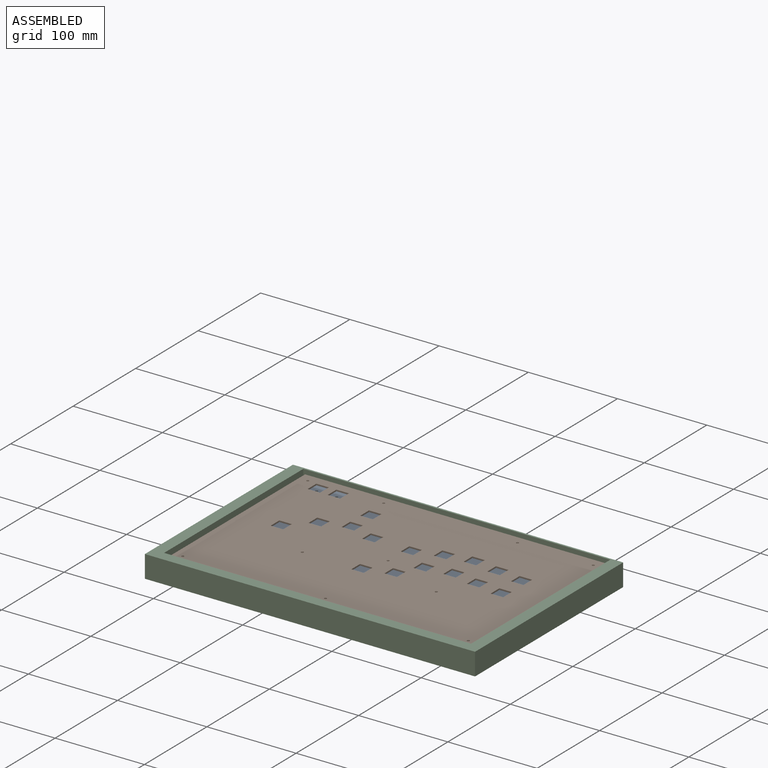
[diagram: assembled view]
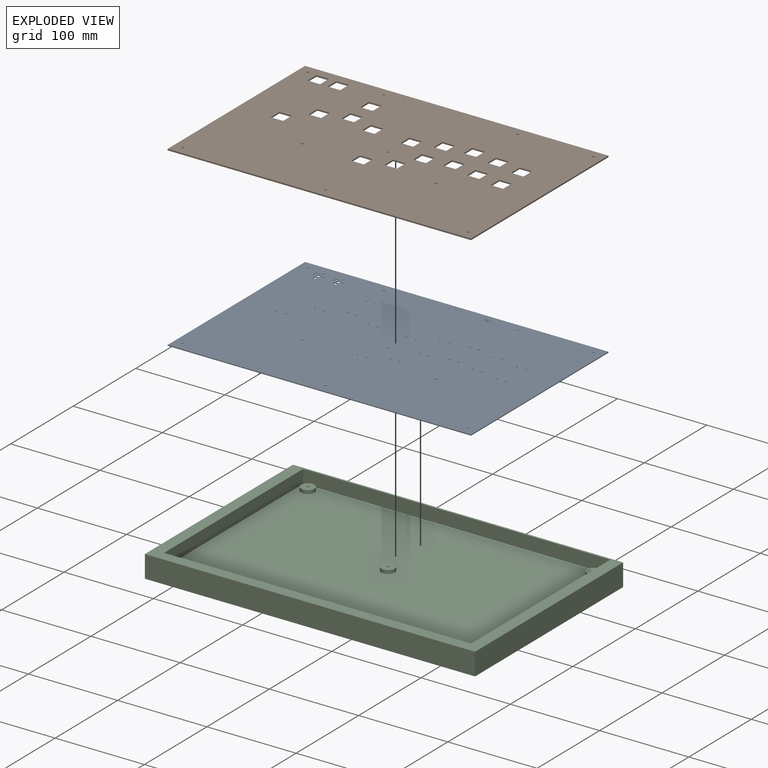
[diagram: exploded view]
GUIDED TOUR — FREECAD ASSEMBLY "Udong"

This assembly has 3 components, labeled P0..P2 below (a component is one placed body or linked part; the same part can appear more than once), held together by 0 modeled joints plus 3 derived contact edges. A joint is a constraint between two components; its type names the relative motion it leaves free:
  CONTACT — a derived adjacency edge — the two components touch in the source model (clearance under 2% of the assembly's diagonal); it is measured from the geometry, not a modeled constraint.
Axis/direction vectors are unit vectors and 'through' points are millimeter coordinates, both in the assembly's world frame.

MATES
  1. CONTACT "contact_0_1": P0 <-> P1, contact direction (0.000, 0.000, 1.000) through (-161.23, -209.43, 16.70) mm (derived from contact, not a modeled constraint)
  2. CONTACT "contact_0_2": P0 <-> P2, contact direction (0.000, 0.000, -1.000) through (-161.12, -210.85, 14.00) mm (derived from contact, not a modeled constraint)
  3. CONTACT "contact_1_2": P1 <-> P2, contact direction (0.000, 0.000, -1.000) through (-158.60, -210.00, 16.20) mm (derived from contact, not a modeled constraint)

ASSEMBLY ORDER
  1. P2 — the base component [order verified]
  2. P0 [order verified]
  3. P1 [order verified]
Order-tag legend:
  [order verified] — this step's position reverses a verified removal order: the component was checked to insert without passing through the ones already placed.

Of the 3 components, 1 carries a construction recipe — the FreeCAD feature program (sketches with constraints, then the solid features that consume them) that regenerates the part from scratch, quoted from this document or from the linked companion document it references; the rest are supplied as boundary geometry only. The tour below walks the components in assembly order: each is shown spotlighted twice — in the assembled view, then in the exploded view, where a leader line traces a displaced component back to its assembled socket (components that stay in place when exploded have no leader line; saturated green if recipe-attached, orange if geometry-only; every other component desaturated gray) — followed by its recipe or geometry summary and the mates that hold it.
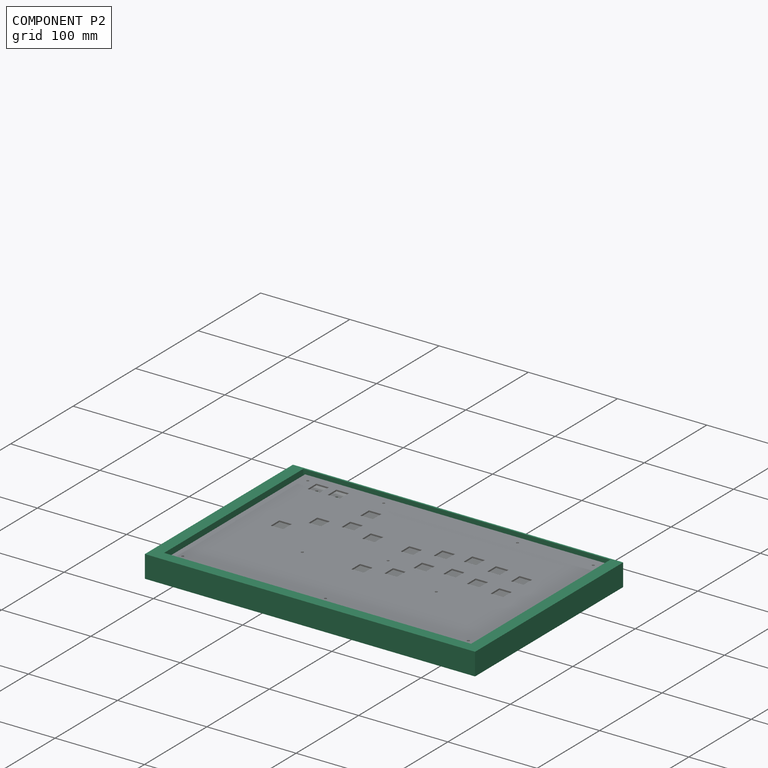
[diagram: component P2 — assembled]
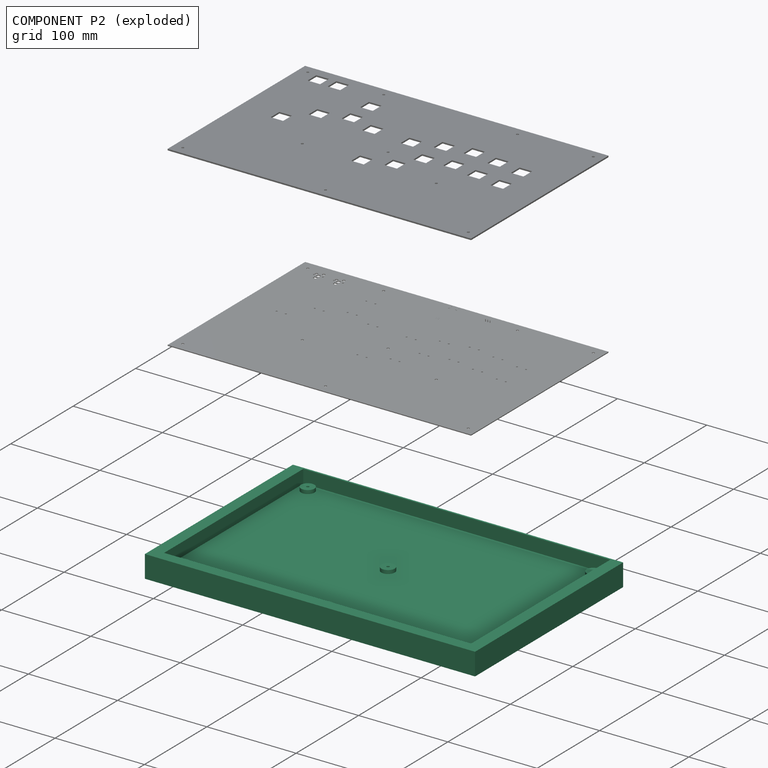
[diagram: component P2 — exploded]
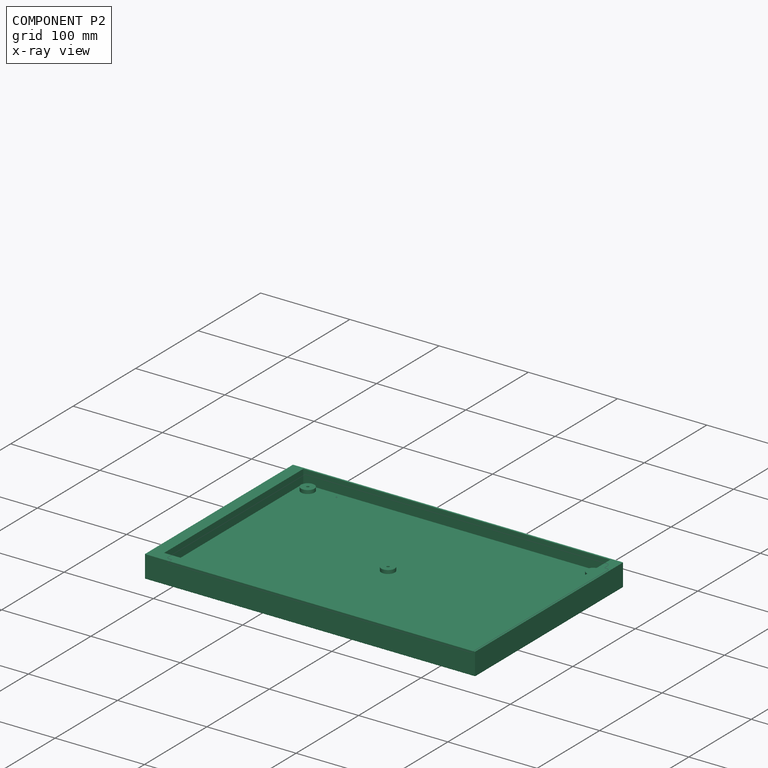
[diagram: component P2 — x-ray view]
COMPONENT P2 — recipe-attached ("Body", modeled in this document).
Held by: resting contact with P0 (derived edge); resting contact with P1 (derived edge).
Construction recipe (the document's own serialized feature program — sketch geometry with constraints, then the solid features built on it; lengths are millimeters unless a unit is written):

FEATURE [Sketcher::SketchObject] Sketch
  FullyConstrained = true
  MapMode = 5
  expr: Constraints[3] = Spreadsheet.box_height
  expr: Constraints[4] = Spreadsheet.box_width
  expr: Constraints[9] = Spreadsheet.usb_wall_thickness
  sketch-geometry (4):
    g0: LineSegment StartX=-185 StartY=2 StartZ=0 EndX=185 EndY=2 EndZ=0
    g1: LineSegment StartX=185 StartY=2 StartZ=0 EndX=185 EndY=-235 EndZ=0
    g2: LineSegment StartX=185 StartY=-235 StartZ=0 EndX=-185 EndY=-235 EndZ=0
    g3: LineSegment StartX=-185 StartY=-235 StartZ=0 EndX=-185 EndY=2 EndZ=0
  constraints (11):
    c: Horizontal(g2)
    c: Vertical(g1)
    c: Vertical(g3)
    c: DistanceY(g1,g1) = 237
    c: DistanceX(g0,g0) = 370
    c: Coincident(g2,g1)
    c: Coincident(g3,g2)
    c: Coincident(g0,g1)
    c: Coincident(g0,g3)
    c: DistanceY(g-1,g0) = 2
    c: Symmetric(g0,g0,g-2)
FEATURE [Sketcher::SketchObject] Sketch001  label="Sketch_MainPocket"
  FullyConstrained = true
  MapMode = 5
  Placement = pos=(0,0,25) rot=(0,0,1;0rad)
  expr: .Placement.Base.z = Spreadsheet.box_thickness
  expr: Constraints[8] = Spreadsheet.pcb_height + 1 mm + 2 * Spreadsheet.fillet_addition
  expr: Constraints[9] = Spreadsheet.pcb_width + 1 mm + Spreadsheet.fillet_phi
  sketch-geometry (4):
    g0: LineSegment StartX=-172 StartY=0 StartZ=0 EndX=172 EndY=0 EndZ=0
    g1: LineSegment StartX=172 StartY=0 StartZ=0 EndX=172 EndY=-222.757 EndZ=0
    g2: LineSegment StartX=172 StartY=-222.757 StartZ=0 EndX=-172 EndY=-222.757 EndZ=0
    g3: LineSegment StartX=-172 StartY=-222.757 StartZ=0 EndX=-172 EndY=0 EndZ=0
  constraints (11):
    c: Coincident(g0,g1)
    c: Coincident(g1,g2)
    c: Coincident(g2,g3)
    c: Coincident(g3,g0)
    c: Horizontal(g0)
    c: Horizontal(g2)
    c: Vertical(g1)
    c: Vertical(g3)
    c: DistanceY(g3,g3) = 222.757
    c: DistanceX(g2,g2) = 344
    c: Symmetric(g0,g0,g-1)
FEATURE [PartDesign::Pad] Pad
  Direction = (0,0,1)
  Length = 25
  Length2 = 10
  Profile = -> Sketch
  ReferenceAxis = -> Sketch [N_Axis]
  Type = 0
  expr: Length = Spreadsheet.box_thickness
FEATURE [PartDesign::Pocket] Pocket
  BaseFeature = -> Pad
  Direction = (0,0,-1)
  Length = 15
  Length2 = 5
  Profile = -> Sketch001
  ReferenceAxis = -> Sketch001 [N_Axis]
  Type = 0
  expr: Length = Spreadsheet.box_thickness - Spreadsheet.box_bottom_thickness
FEATURE [Sketcher::SketchObject] Sketch002  label="Sketch_Mounting"
  FullyConstrained = true
  MapMode = 5
  Placement = pos=(0,0,10) rot=(0,0,1;0rad)
  expr: Constraints[2] = Spreadsheet.mounting_phi
  sketch-geometry (6):
    g0: Circle CenterX=160 CenterY=-10 CenterZ=0 NormalX=0 NormalY=0 NormalZ=1 AngleXU=0 Radius=7.5
    g1: Circle CenterX=160 CenterY=-210 CenterZ=0 NormalX=0 NormalY=0 NormalZ=1 AngleXU=0 Radius=7.5
    g2: Circle CenterX=-160 CenterY=-10 CenterZ=0 NormalX=0 NormalY=0 NormalZ=1 AngleXU=0 Radius=7.5
    g3: Circle CenterX=-160 CenterY=-210 CenterZ=0 NormalX=0 NormalY=0 NormalZ=1 AngleXU=0 Radius=7.5
    g4: Circle CenterX=0 CenterY=-110 CenterZ=0 NormalX=0 NormalY=0 NormalZ=1 AngleXU=0 Radius=7.5
    g5: Circle CenterX=0 CenterY=-210 CenterZ=0 NormalX=0 NormalY=0 NormalZ=1 AngleXU=0 Radius=7.5
  constraints (16):
    c: DistanceX(g-2,g0) = 160
    c: DistanceY(g0,g-1) = 10
    c: Diameter(g0) = 15
    c: Vertical(g1,g0)
    c: DistanceY(g1) = -210
    c: Symmetric(g3,g1,g-2)
    c: Symmetric(g2,g0,g-2)
    c: Equal(g2,g0)
    c: Equal(g0,g3)
    c: Equal(g0,g1)
    c: PointOnObject(g4,g-2)
    c: DistanceY(g4) = -110
    c: Equal(g0,g4)
    c: PointOnObject(g5,g-2)
    c: Horizontal(g1,g5)
    c: Equal(g0,g5)
FEATURE [PartDesign::Pad] Pad001
  BaseFeature = -> Pocket
  Direction = (0,0,1)
  Length = 4
  Length2 = 10
  Profile = -> Sketch002
  ReferenceAxis = -> Sketch002 [N_Axis]
  Type = 0
  expr: Length = Spreadsheet.bottom_space
FEATURE [Sketcher::SketchObject] Sketch003  label="Ceil_holder_Sketch"
  FullyConstrained = true
  MapMode = 5
  Placement = pos=(0,0,25) rot=(0,0,1;0rad)
  Support = -> [Pad001]
  expr: Constraints[10] = Spreadsheet.ceil_width
  expr: Constraints[8] = Spreadsheet.ceil_holder_thickness
  expr: Constraints[9] = Spreadsheet.ceil_height
  sketch-geometry (4):
    g0: LineSegment StartX=-178 StartY=8 StartZ=0 EndX=178 EndY=8 EndZ=0
    g1: LineSegment StartX=178 StartY=8 StartZ=0 EndX=178 EndY=-215 EndZ=0
    g2: LineSegment StartX=178 StartY=-215 StartZ=0 EndX=-178 EndY=-215 EndZ=0
    g3: LineSegment StartX=-178 StartY=-215 StartZ=0 EndX=-178 EndY=8 EndZ=0
  constraints (11):
    c: Coincident(g0,g1)
    c: Coincident(g1,g2)
    c: Coincident(g2,g3)
    c: Coincident(g3,g0)
    c: Horizontal(g2)
    c: Vertical(g1)
    c: Vertical(g3)
    c: Symmetric(g0,g0,g-2)
    c: DistanceY(g-1,g0) = 8
    c: DistanceY(g1,g1) = 223
    c: DistanceX(g2,g2) = 356
FEATURE [Sketcher::SketchObject] Sketch004  label="Screw_holes_Sketch"
  FullyConstrained = true
  MapMode = 5
  Placement = pos=(0,0,14) rot=(0,0,1;0rad)
  expr: Constraints[0] = Spreadsheet.M2_5_hole_phi
  sketch-geometry (6):
    g0: Circle CenterX=160 CenterY=-10 CenterZ=0 NormalX=0 NormalY=0 NormalZ=1 AngleXU=0 Radius=1.4
    g1: Circle CenterX=160 CenterY=-210 CenterZ=0 NormalX=0 NormalY=0 NormalZ=1 AngleXU=0 Radius=1.4
    g2: Circle CenterX=-160 CenterY=-10 CenterZ=0 NormalX=0 NormalY=0 NormalZ=1 AngleXU=0 Radius=1.4
    g3: Circle CenterX=-160 CenterY=-210 CenterZ=0 NormalX=0 NormalY=0 NormalZ=1 AngleXU=0 Radius=1.4
    g4: Circle CenterX=0 CenterY=-210 CenterZ=0 NormalX=0 NormalY=0 NormalZ=1 AngleXU=0 Radius=1.4
    g5: Circle CenterX=0 CenterY=-110 CenterZ=0 NormalX=0 NormalY=0 NormalZ=1 AngleXU=0 Radius=1.4
  constraints (16):
    c: Diameter(g0) = 2.8
    c: DistanceX(g0) = 160
    c: DistanceY(g0) = -10
    c: Equal(g0,g1)
    c: DistanceY(g1) = -210
    c: Vertical(g0,g1)
    c: Diameter(g2) = 2.8
    c: Equal(g2,g3)
    c: PointOnObject(g4,g-2)
    c: Equal(g0,g4)
    c: Horizontal(g4,g1)
    c: PointOnObject(g5,g-2)
    c: DistanceY(g5) = -110
    c: Equal(g0,g5)
    c: Symmetric(g0,g2,g-2)
    c: Symmetric(g1,g3,g-2)
FEATURE [Sketcher::SketchObject] Sketch005  label="Nut_holds_Sketch"
  FullyConstrained = true
  MapMode = 5
  Placement = pos=(0,0,0) rot=(1,0,0;3.14159rad)
  expr: Constraints[122] = Spreadsheet.M2_5_nut_width / 2
  expr: Constraints[20] = Spreadsheet.M2_5_nut_width / 2
  expr: Constraints[38] = Spreadsheet.M2_5_nut_width / 2
  expr: Constraints[59] = Spreadsheet.M2_5_nut_width / 2
  expr: Constraints[80] = Spreadsheet.M2_5_nut_width / 2
  expr: Constraints[98] = Spreadsheet.M2_5_nut_width / 2
  sketch-geometry (42):
    g0: LineSegment StartX=2.6 StartY=108.499 StartZ=0 EndX=2.6 EndY=111.501 EndZ=0
    g1: LineSegment StartX=2.6 StartY=111.501 StartZ=0 EndX=0 EndY=113.002 EndZ=0
    g2: LineSegment StartX=0 StartY=113.002 StartZ=0 EndX=-2.6 EndY=111.501 EndZ=0
    g3: LineSegment StartX=-2.6 StartY=111.501 StartZ=0 EndX=-2.6 EndY=108.499 EndZ=0
    g4: LineSegment StartX=-2.6 StartY=108.499 StartZ=0 EndX=0 EndY=106.998 EndZ=0
    g5: LineSegment StartX=0 StartY=106.998 StartZ=0 EndX=2.6 EndY=108.499 EndZ=0
    g6: Circle CenterX=-2.543e-13 CenterY=110 CenterZ=0 NormalX=0 NormalY=0 NormalZ=1 AngleXU=0 Radius=3.00222
    g7: LineSegment StartX=-157.4 StartY=8.49889 StartZ=0 EndX=-157.4 EndY=11.5011 EndZ=0
    g8: LineSegment StartX=-157.4 StartY=11.5011 StartZ=0 EndX=-160 EndY=13.0022 EndZ=0
    g9: LineSegment StartX=-160 StartY=13.0022 StartZ=0 EndX=-162.6 EndY=11.5011 EndZ=0
    g10: LineSegment StartX=-162.6 StartY=11.5011 StartZ=0 EndX=-162.6 EndY=8.49889 EndZ=0
    g11: LineSegment StartX=-162.6 StartY=8.49889 StartZ=0 EndX=-160 EndY=6.99778 EndZ=0
    g12: LineSegment StartX=-160 StartY=6.99778 StartZ=0 EndX=-157.4 EndY=8.49889 EndZ=0
    g13: Circle CenterX=-160 CenterY=10 CenterZ=0 NormalX=0 NormalY=0 NormalZ=1 AngleXU=0 Radius=3.00222
    g14: LineSegment StartX=-157.4 StartY=208.499 StartZ=0 EndX=-157.4 EndY=211.501 EndZ=0
    g15: LineSegment StartX=-157.4 StartY=211.501 StartZ=0 EndX=-160 EndY=213.002 EndZ=0
    g16: LineSegment StartX=-160 StartY=213.002 StartZ=0 EndX=-162.6 EndY=211.501 EndZ=0
    g17: LineSegment StartX=-162.6 StartY=211.501 StartZ=0 EndX=-162.6 EndY=208.499 EndZ=0
    g18: LineSegment StartX=-162.6 StartY=208.499 StartZ=0 EndX=-160 EndY=206.998 EndZ=0
    g19: LineSegment StartX=-160 StartY=206.998 StartZ=0 EndX=-157.4 EndY=208.499 EndZ=0
    g20: Circle CenterX=-160 CenterY=210 CenterZ=0 NormalX=0 NormalY=0 NormalZ=1 AngleXU=0 Radius=3.00222
    g21: LineSegment StartX=157.4 StartY=8.49889 StartZ=0 EndX=157.4 EndY=11.5011 EndZ=0
    g22: LineSegment StartX=157.4 StartY=11.5011 StartZ=0 EndX=160 EndY=13.0022 EndZ=0
    g23: LineSegment StartX=160 StartY=13.0022 StartZ=0 EndX=162.6 EndY=11.5011 EndZ=0
    g24: LineSegment StartX=162.6 StartY=11.5011 StartZ=0 EndX=162.6 EndY=8.49889 EndZ=0
    g25: LineSegment StartX=162.6 StartY=8.49889 StartZ=0 EndX=160 EndY=6.99778 EndZ=0
    g26: LineSegment StartX=160 StartY=6.99778 StartZ=0 EndX=157.4 EndY=8.49889 EndZ=0
    g27: Circle CenterX=160 CenterY=10 CenterZ=0 NormalX=0 NormalY=0 NormalZ=1 AngleXU=0 Radius=3.00222
    g28: LineSegment StartX=157.4 StartY=208.499 StartZ=0 EndX=157.4 EndY=211.501 EndZ=0
    g29: LineSegment StartX=157.4 StartY=211.501 StartZ=0 EndX=160 EndY=213.002 EndZ=0
    g30: LineSegment StartX=160 StartY=213.002 StartZ=0 EndX=162.6 EndY=211.501 EndZ=0
    g31: LineSegment StartX=162.6 StartY=211.501 StartZ=0 EndX=162.6 EndY=208.499 EndZ=0
    g32: LineSegment StartX=162.6 StartY=208.499 StartZ=0 EndX=160 EndY=206.998 EndZ=0
    g33: LineSegment StartX=160 StartY=206.998 StartZ=0 EndX=157.4 EndY=208.499 EndZ=0
    g34: Circle CenterX=160 CenterY=210 CenterZ=0 NormalX=0 NormalY=0 NormalZ=1 AngleXU=0 Radius=3.00222
    g35: LineSegment StartX=2.6 StartY=208.499 StartZ=0 EndX=2.6 EndY=211.501 EndZ=0
    g36: LineSegment StartX=2.6 StartY=211.501 StartZ=0 EndX=1.608e-13 EndY=213.002 EndZ=0
    g37: LineSegment StartX=1.608e-13 StartY=213.002 StartZ=0 EndX=-2.6 EndY=211.501 EndZ=0
    g38: LineSegment StartX=-2.6 StartY=211.501 StartZ=0 EndX=-2.6 EndY=208.499 EndZ=0
    g39: LineSegment StartX=-2.6 StartY=208.499 StartZ=0 EndX=1.608e-13 EndY=206.998 EndZ=0
    g40: LineSegment StartX=1.608e-13 StartY=206.998 StartZ=0 EndX=2.6 EndY=208.499 EndZ=0
    g41: Circle CenterX=0 CenterY=210 CenterZ=0 NormalX=0 NormalY=0 NormalZ=1 AngleXU=0 Radius=3.00222
  constraints (102):
    c: Coincident(g0,g1)
    c: Coincident(g1,g2)
    c: Coincident(g2,g3)
    c: Coincident(g3,g4)
    c: Coincident(g4,g5)
    c: Coincident(g5,g0)
    c: Equal(g0, g1-g5) x5
    c: PointOnObject(g0,g6)
    c: PointOnObject(g1,g6)
    c: PointOnObject(g2,g6)
    c: PointOnObject(g3,g6)
    c: PointOnObject(g4,g6)
    c: PointOnObject(g5,g6)
    c: PointOnObject(g1,g-2)
    c: PointOnObject(g4,g-2)
    c: DistanceY(g6) = 110
    c: Distance(g6,g3) = 2.6
    c: Coincident(g7,g8)
    c: Coincident(g8,g9)
    c: Coincident(g9,g10)
    c: Coincident(g10,g11)
    c: Coincident(g11,g12)
    c: Coincident(g12,g7)
    c: Equal(g7, g8-g12) x5
    c: PointOnObject(g7,g13)
    c: PointOnObject(g8,g13)
    c: PointOnObject(g9,g13)
    c: PointOnObject(g10,g13)
    c: PointOnObject(g11,g13)
    c: PointOnObject(g12,g13)
    c: Distance(g13,g10) = 2.6
    c: DistanceY(g13) = 10
    c: DistanceX(g13) = -160
    c: Vertical(g11,g8)
    c: Coincident(g14,g15)
    c: Coincident(g15,g16)
    c: Coincident(g16,g17)
    c: Coincident(g17,g18)
    c: Coincident(g18,g19)
    c: Coincident(g19,g14)
    c: Equal(g14, g15-g19) x5
    c: PointOnObject(g14,g20)
    c: PointOnObject(g15,g20)
    c: PointOnObject(g16,g20)
    c: PointOnObject(g17,g20)
    c: PointOnObject(g18,g20)
    c: PointOnObject(g19,g20)
    c: Distance(g20,g17) = 2.6
    c: Vertical(g18,g15)
    c: Vertical(g13,g20)
    c: DistanceY(g20) = 210
    c: Coincident(g21,g22)
    c: Coincident(g22,g23)
    c: Coincident(g23,g24)
    c: Coincident(g24,g25)
    c: Coincident(g25,g26)
    c: Coincident(g26,g21)
    c: Equal(g21, g22-g26) x5
    c: PointOnObject(g21,g27)
    c: PointOnObject(g22,g27)
    c: PointOnObject(g23,g27)
    c: PointOnObject(g24,g27)
    c: PointOnObject(g25,g27)
    c: PointOnObject(g26,g27)
    c: Distance(g27,g24) = 2.6
    c: Coincident(g28,g29)
    c: Coincident(g29,g30)
    c: Coincident(g30,g31)
    c: Coincident(g31,g32)
    c: Coincident(g32,g33)
    c: Coincident(g33,g28)
    c: Equal(g28, g29-g33) x5
    c: PointOnObject(g28,g34)
    c: PointOnObject(g29,g34)
    c: PointOnObject(g30,g34)
    c: PointOnObject(g31,g34)
    c: PointOnObject(g32,g34)
    c: PointOnObject(g33,g34)
    c: Distance(g34,g31) = 2.6
    c: Vertical(g29,g32)
    c: Vertical(g22,g25)
    c: DistanceX(g27) = 160
    c: DistanceX(g34) = 160
    c: DistanceY(g34) = 210
    c: DistanceY(g27) = 10
    c: Coincident(g35,g36)
    c: Coincident(g36,g37)
    c: Coincident(g37,g38)
    c: Coincident(g38,g39)
    c: Coincident(g39,g40)
    c: Coincident(g40,g35)
    c: Equal(g35, g36-g40) x5
    c: PointOnObject(g35,g41)
    c: PointOnObject(g36,g41)
    c: PointOnObject(g37,g41)
    c: PointOnObject(g38,g41)
    c: PointOnObject(g39,g41)
    c: PointOnObject(g40,g41)
    c: Distance(g41,g38) = 2.6
    c: PointOnObject(g41,g-2)
    c: Vertical(g36,g39)
    c: DistanceY(g41) = 210
FEATURE [PartDesign::Pocket] Pocket002
  BaseFeature = -> Pad001
  Direction = (0,0,1)
  Length = 3
  Length2 = 5
  Profile = -> Sketch005
  ReferenceAxis = -> Sketch005 [N_Axis]
  Type = 0
  expr: Length = Spreadsheet.nut_hole_thickness
FEATURE [PartDesign::Hole] Hole
  BaseFeature = -> Pocket002
  CustomThreadClearance = 0
  Depth = 25
  DepthType = 0
  Diameter = 2.9
  DrillForDepth = false
  DrillPoint = 1
  DrillPointAngle = 118
  HoleCutCountersinkAngle = 90
  HoleCutCustomValues = false
  HoleCutDepth = 0
  HoleCutDiameter = 6.1
  HoleCutType = 0
  ModelThread = false
  Profile = -> Sketch004
  Tapered = false
  TaperedAngle = 90
  ThreadClass = 0
  ThreadDepth = 25
  ThreadDepthType = 0
  ThreadDirection = 0
  ThreadFit = 0
  ThreadSize = 8
  ThreadType = 1
  Threaded = false
  UseCustomThreadClearance = false
FEATURE [PartDesign::Body] Body
  Group = -> [Sketch,Pad,Sketch001,Pocket,Sketch002,Pad001,Sketch003,Sketch004,Sketch005,Pocket002,Hole]
  Origin = -> Origin107
  Tip = -> Hole
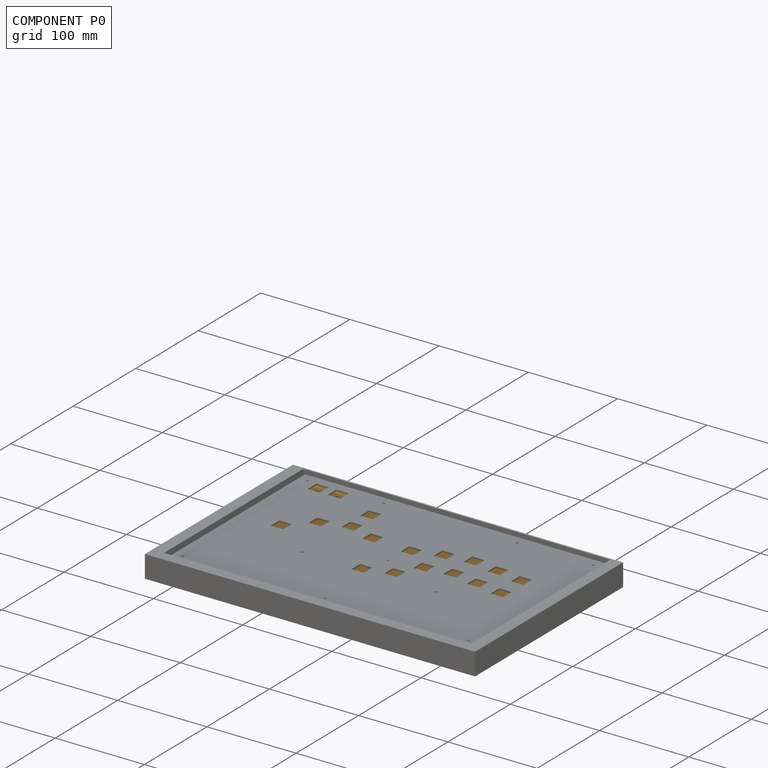
[diagram: component P0 — assembled]
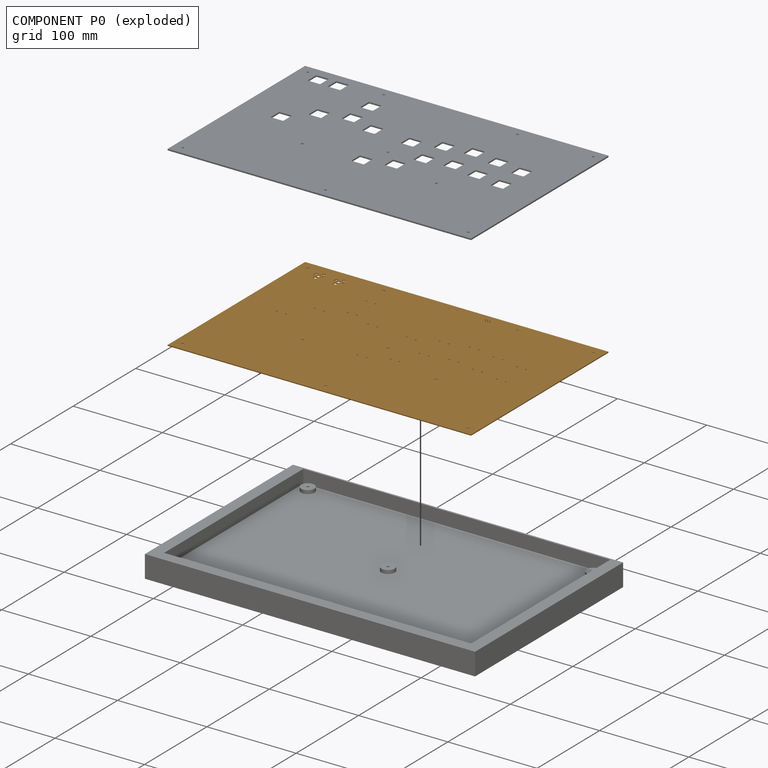
[diagram: component P0 — exploded]
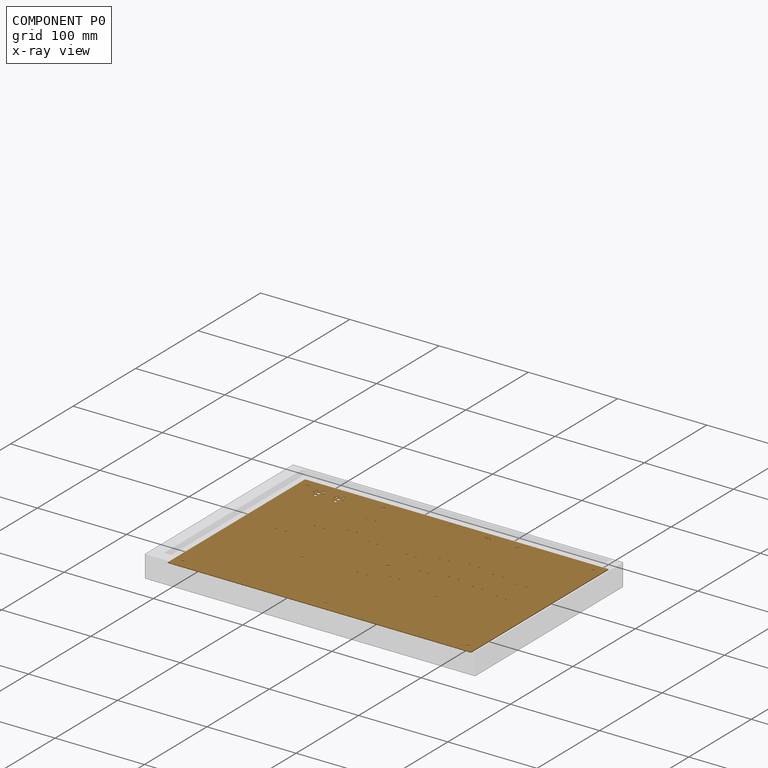
[diagram: component P0 — x-ray view]
COMPONENT P0 — geometry summary ("mainboard"; no construction recipe available for this part):
  bounding box: 340.0 x 220.6 x 6.5 mm
  tessellated surface: 42,160 triangles
  volume: 75212 mm^3 (16% of its bounding box)
  symmetry: 2-fold rotationally symmetric about the x axis; 2-fold rotationally symmetric about the y axis; 2-fold rotationally symmetric about the z axis; mirror-symmetric across its x mid-plane, y mid-plane, z mid-plane
Held by: resting contact with P1 (derived edge); resting contact with P2 (derived edge).
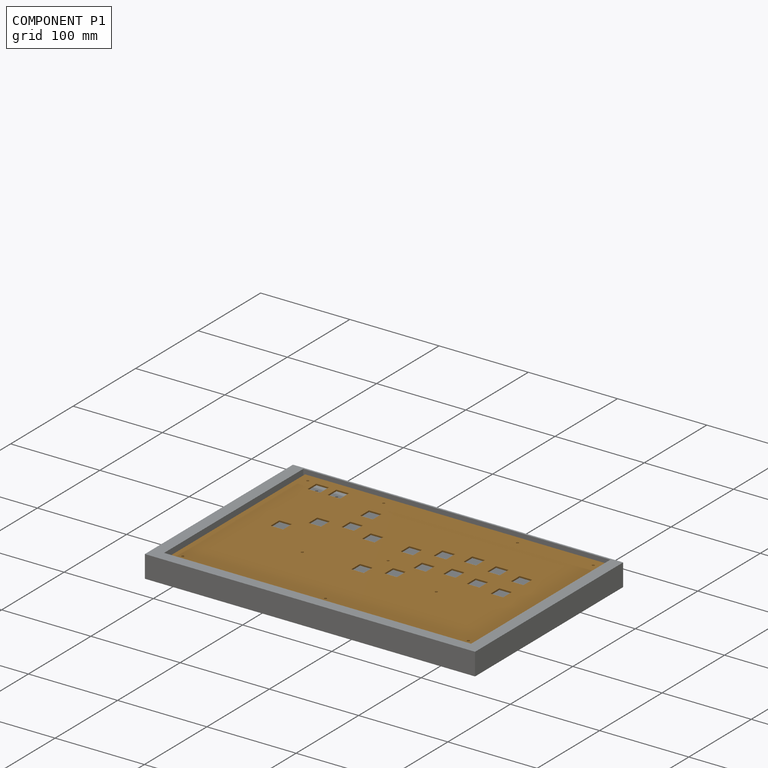
[diagram: component P1 — assembled]
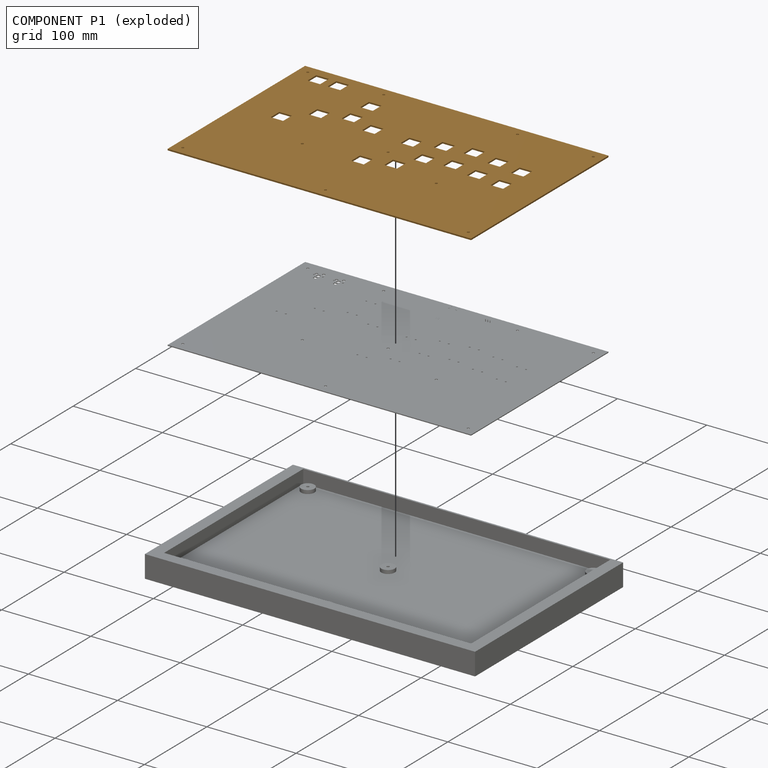
[diagram: component P1 — exploded]
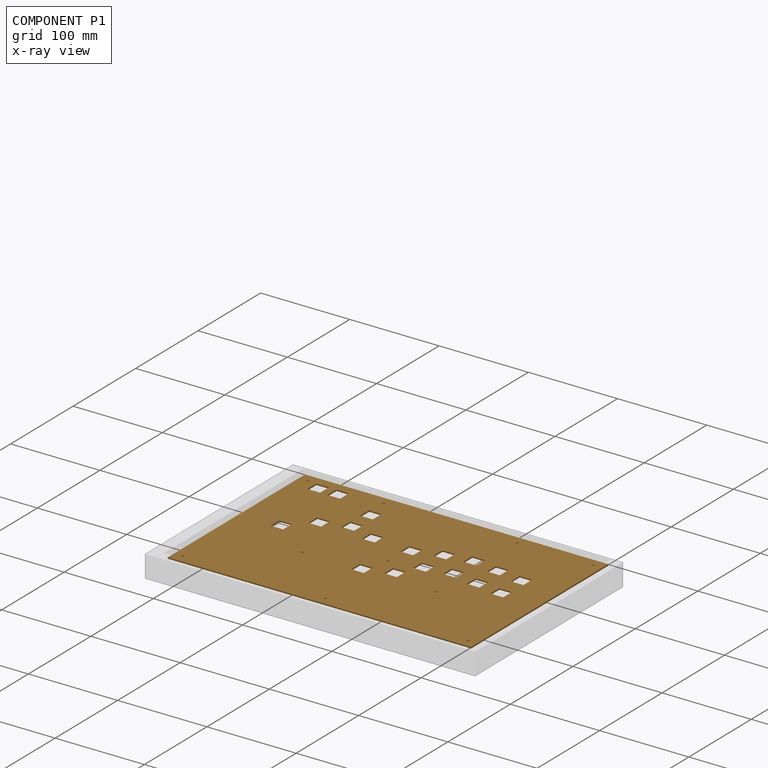
[diagram: component P1 — x-ray view]
COMPONENT P1 — geometry summary ("topplate"; no construction recipe available for this part):
  bounding box: 340.0 x 220.0 x 1.6 mm
  tessellated surface: 3,596 triangles
  volume: 113945 mm^3 (95% of its bounding box)
  symmetry: mirror-symmetric across its z mid-plane
Held by: resting contact with P0 (derived edge); resting contact with P2 (derived edge).
PROVENANCE & LICENSES
Assembly and component geometry: a FreeCAD (.FCStd) document from a public repository crawl; components, placements and joints were extracted with FreeCAD and each solid tessellated.
Construction recipes: the document's own serialized feature recipes (and, for linked parts, the recipes of companion documents from the same project).
License: as declared in the source repository (recorded in the dataset sidecar).
Joints: native FreeCAD joints and A2plus constraints are mapped to standard mate types; edges marked 'derived from contact' connect touching components and are measured from the geometry, not modeled.
Verification: 1 of this assembly's 3 components carries a construction recipe (1 from this document itself); the rest are geometry-only. Every component's tessellation passed the extraction mesh gates (mesh-volume checksum against the B-rep where available, bounding-box inflation <= 2%).
Renders: orthographic iso camera (az 35 / el 25); the floor grid conveys scale (grid pitch printed in each image; no ruler). In the exploded view each component is displaced by its stored offset vector: the offsets alone carry the explosion direction (mate normal/axis signs are not orientation cues and do not encode it), and separation distances are assigned per mate-chain, not proportionally to assembly-order depth.
